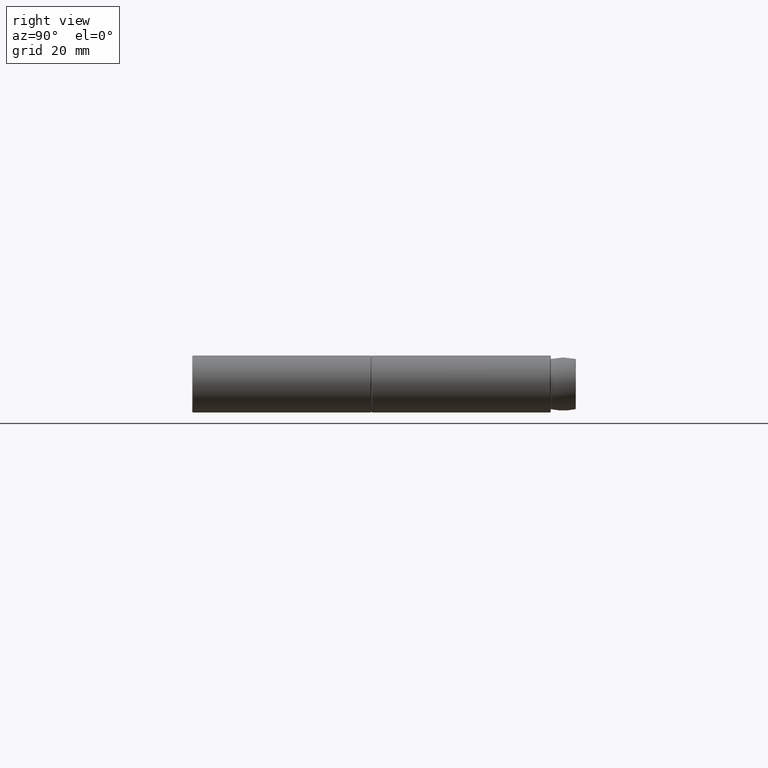
[diagram: clean part render]
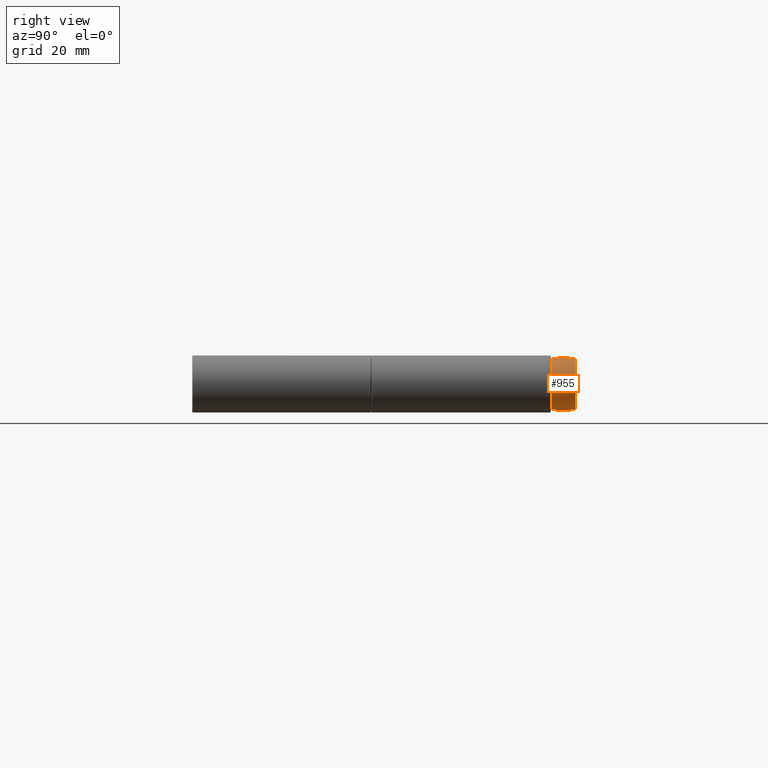
[diagram: same view with one face highlighted and labeled with its STEP entity id]
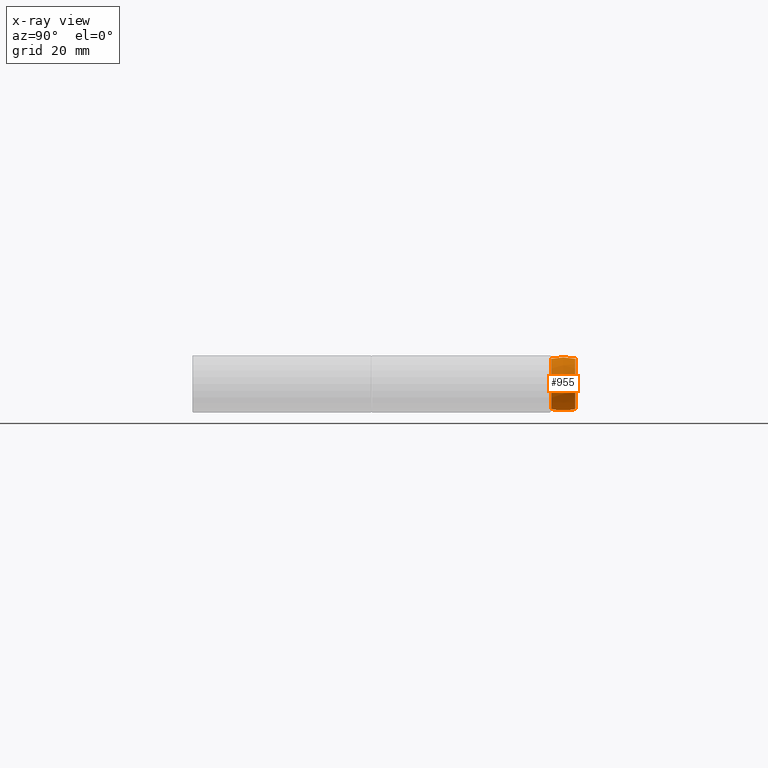
[diagram: x-ray of the same camera — body ghosted, the highlighted face saturated]
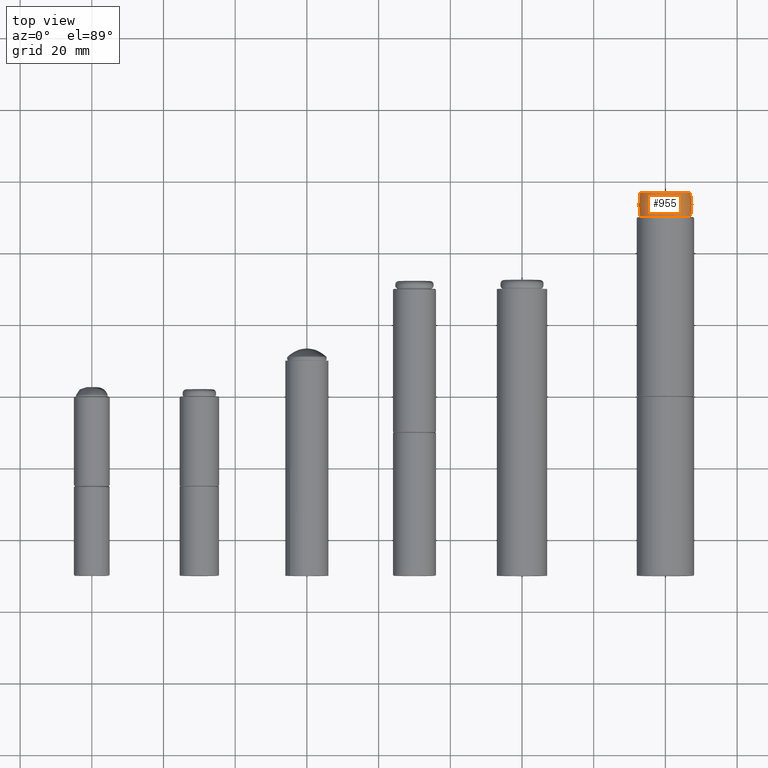
[diagram: same view with one face highlighted and labeled with its STEP entity id]
A machine part, right view. The second image highlights one B-rep face of the part: STEP entity #955.
The next image is the same camera in x-ray: the body ghosted, the highlighted face saturated — about 0% of this face is hidden behind the body in this view.
A second angle (top view) of the same face is appended — the face is thin or edge-on in the first view.
In plain terms, the highlighted face is a freeform B-spline surface patch.
Its self-contained STEP definition (entity closure, byte-faithful):
#169=(
BOUNDED_CURVE()
B_SPLINE_CURVE(2,(#1834,#1835,#1836),.UNSPECIFIED.,.F.,.F.)
B_SPLINE_CURVE_WITH_KNOTS((3,3),(-0.217214281314195,0.217214281314195),
 .UNSPECIFIED.)
CURVE()
GEOMETRIC_REPRESENTATION_ITEM()
RATIONAL_B_SPLINE_CURVE((1.,0.976501588291949,1.))
REPRESENTATION_ITEM('')
);
#171=(
BOUNDED_SURFACE()
B_SPLINE_SURFACE(2,2,((#1806,#1807,#1808,#1809,#1810,#1811,#1812,#1813,
#1814),(#1815,#1816,#1817,#1818,#1819,#1820,#1821,#1822,#1823),(#1824,#1825,
#1826,#1827,#1828,#1829,#1830,#1831,#1832)),.UNSPECIFIED.,.F.,.T.,.F.)
B_SPLINE_SURFACE_WITH_KNOTS((3,3),(3,2,2,2,3),(-0.217214281314195,0.217214281314195),
(-3.14159265358979,-1.5707963267949,0.,1.5707963267949,3.14159265358979),
 .UNSPECIFIED.)
GEOMETRIC_REPRESENTATION_ITEM()
RATIONAL_B_SPLINE_SURFACE(((1.,0.707106781186548,1.,0.707106781186548,1.,
0.707106781186548,1.,0.707106781186548,1.),(0.976501588291949,0.690490894920671,
0.976501588291949,0.690490894920671,0.976501588291949,0.690490894920671,
0.976501588291949,0.690490894920671,0.976501588291949),(1.,0.707106781186548,
1.,0.707106781186548,1.,0.707106781186548,1.,0.707106781186548,1.)))
REPRESENTATION_ITEM('')
SURFACE()
);
#340=FACE_OUTER_BOUND('',#471,.T.);
#471=EDGE_LOOP('',(#841,#842,#843,#844,#845,#846));
#552=CIRCLE('',#1134,7.03548088837881);
#553=CIRCLE('',#1135,7.03548088837881);
#555=CIRCLE('',#1137,7.03548088837881);
#556=CIRCLE('',#1138,7.03548088837881);
#626=VERTEX_POINT('',#1800);
#627=VERTEX_POINT('',#1801);
#629=VERTEX_POINT('',#1833);
#630=VERTEX_POINT('',#1837);
#701=EDGE_CURVE('',#626,#627,#552,.T.);
#702=EDGE_CURVE('',#627,#626,#553,.T.);
#704=EDGE_CURVE('',#627,#629,#169,.T.);
#705=EDGE_CURVE('',#630,#629,#555,.T.);
#706=EDGE_CURVE('',#629,#630,#556,.T.);
#841=ORIENTED_EDGE('',*,*,#701,.F.);
#842=ORIENTED_EDGE('',*,*,#702,.F.);
#843=ORIENTED_EDGE('',*,*,#704,.T.);
#844=ORIENTED_EDGE('',*,*,#705,.F.);
#845=ORIENTED_EDGE('',*,*,#706,.F.);
#846=ORIENTED_EDGE('',*,*,#704,.F.);
#955=ADVANCED_FACE('',(#340),#171,.F.);
#1134=AXIS2_PLACEMENT_3D('',#1802,#1481,#1482);
#1135=AXIS2_PLACEMENT_3D('',#1803,#1483,#1484);
#1137=AXIS2_PLACEMENT_3D('',#1838,#1487,#1488);
#1138=AXIS2_PLACEMENT_3D('',#1839,#1489,#1490);
#1481=DIRECTION('center_axis',(-1.33226762955019E-16,1.,0.));
#1482=DIRECTION('ref_axis',(1.,1.57803431242208E-16,0.));
#1483=DIRECTION('center_axis',(-1.33226762955019E-16,1.,0.));
#1484=DIRECTION('ref_axis',(1.,1.57803431242208E-16,0.));
#1487=DIRECTION('center_axis',(1.33226762955019E-16,-1.,0.));
#1488=DIRECTION('ref_axis',(1.,1.57803431242208E-16,0.));
#1489=DIRECTION('center_axis',(1.33226762955019E-16,-1.,0.));
#1490=DIRECTION('ref_axis',(1.,1.57803431242208E-16,0.));
#1800=CARTESIAN_POINT('',(-7.03548088837881,6.84310204081633,8.61597915041548E-16));
#1801=CARTESIAN_POINT('',(2.09030072162862E-17,6.84310204081633,-7.03548088837881));
#1802=CARTESIAN_POINT('Origin',(2.09030072162863E-17,6.84310204081633,0.));
#1803=CARTESIAN_POINT('Origin',(2.09030072162863E-17,6.84310204081633,0.));
#1806=CARTESIAN_POINT('Ctrl Pts',(9.11684333468839E-16,0.156897959183672,
-7.03548088837881));
#1807=CARTESIAN_POINT('Ctrl Pts',(-7.03548088837881,0.156897959183671,-7.03548088837881));
#1808=CARTESIAN_POINT('Ctrl Pts',(-7.03548088837881,0.156897959183671,0.));
#1809=CARTESIAN_POINT('Ctrl Pts',(-7.03548088837881,0.156897959183671,7.03548088837881));
#1810=CARTESIAN_POINT('Ctrl Pts',(9.11684333468839E-16,0.156897959183672,
7.03548088837881));
#1811=CARTESIAN_POINT('Ctrl Pts',(7.03548088837881,0.156897959183673,7.03548088837881));
#1812=CARTESIAN_POINT('Ctrl Pts',(7.03548088837881,0.156897959183673,0.));
#1813=CARTESIAN_POINT('Ctrl Pts',(7.03548088837881,0.156897959183673,-7.03548088837881));
#1814=CARTESIAN_POINT('Ctrl Pts',(9.11684333468839E-16,0.156897959183672,
-7.03548088837881));
#1815=CARTESIAN_POINT('Ctrl Pts',(4.66293670342563E-16,3.5,-7.77329085379041));
#1816=CARTESIAN_POINT('Ctrl Pts',(-7.7732908537904,3.5,-7.7732908537904));
#1817=CARTESIAN_POINT('Ctrl Pts',(-7.77329085379041,3.5,0.));
#1818=CARTESIAN_POINT('Ctrl Pts',(-7.7732908537904,3.5,7.7732908537904));
#1819=CARTESIAN_POINT('Ctrl Pts',(4.66293670342563E-16,3.5,7.77329085379041));
#1820=CARTESIAN_POINT('Ctrl Pts',(7.7732908537904,3.5,7.7732908537904));
#1821=CARTESIAN_POINT('Ctrl Pts',(7.77329085379041,3.5,0.));
#1822=CARTESIAN_POINT('Ctrl Pts',(7.7732908537904,3.5,-7.7732908537904));
#1823=CARTESIAN_POINT('Ctrl Pts',(4.66293670342563E-16,3.5,-7.77329085379041));
#1824=CARTESIAN_POINT('Ctrl Pts',(2.09030072162862E-17,6.84310204081633,
-7.03548088837881));
#1825=CARTESIAN_POINT('Ctrl Pts',(-7.03548088837881,6.84310204081633,-7.03548088837881));
#1826=CARTESIAN_POINT('Ctrl Pts',(-7.03548088837881,6.84310204081633,6.16297582203915E-32));
#1827=CARTESIAN_POINT('Ctrl Pts',(-7.03548088837881,6.84310204081633,7.03548088837881));
#1828=CARTESIAN_POINT('Ctrl Pts',(2.09030072162863E-17,6.84310204081633,
7.03548088837881));
#1829=CARTESIAN_POINT('Ctrl Pts',(7.03548088837881,6.84310204081633,7.03548088837881));
#1830=CARTESIAN_POINT('Ctrl Pts',(7.03548088837881,6.84310204081633,-6.16297582203915E-32));
#1831=CARTESIAN_POINT('Ctrl Pts',(7.03548088837881,6.84310204081633,-7.03548088837881));
#1832=CARTESIAN_POINT('Ctrl Pts',(2.09030072162862E-17,6.84310204081633,
-7.03548088837881));
#1833=CARTESIAN_POINT('',(9.11684333468839E-16,0.156897959183672,-7.03548088837881));
#1834=CARTESIAN_POINT('Ctrl Pts',(2.09030072162862E-17,6.84310204081633,
-7.03548088837881));
#1835=CARTESIAN_POINT('Ctrl Pts',(4.66293670342563E-16,3.5,-7.77329085379041));
#1836=CARTESIAN_POINT('Ctrl Pts',(9.11684333468839E-16,0.156897959183672,
-7.03548088837881));
#1837=CARTESIAN_POINT('',(-7.03548088837881,0.156897959183672,-8.61597915041548E-16));
#1838=CARTESIAN_POINT('Origin',(9.11684333468839E-16,0.156897959183673,
0.));
#1839=CARTESIAN_POINT('Origin',(9.11684333468839E-16,0.156897959183673,
0.));